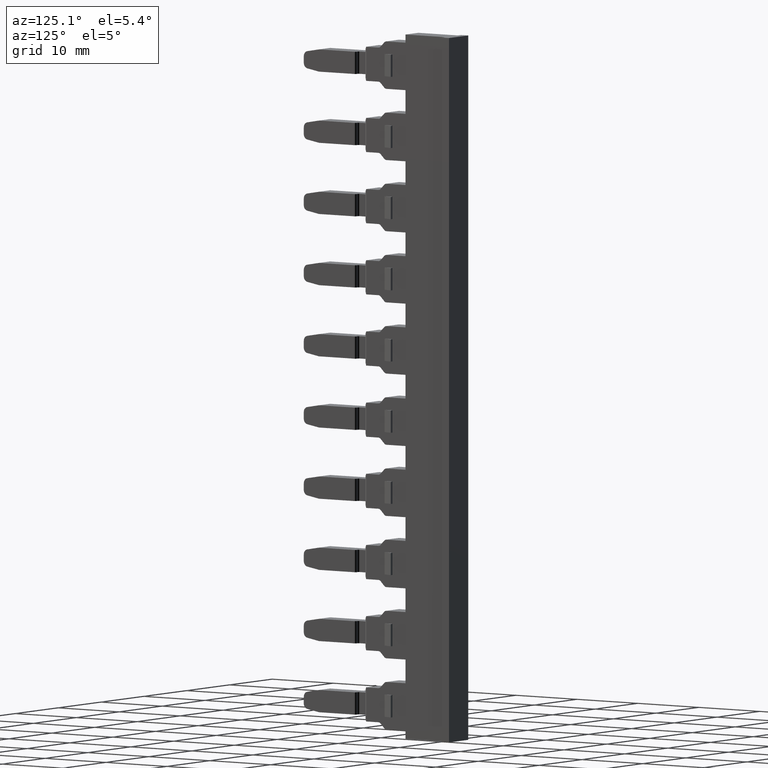
[diagram: clean part render]
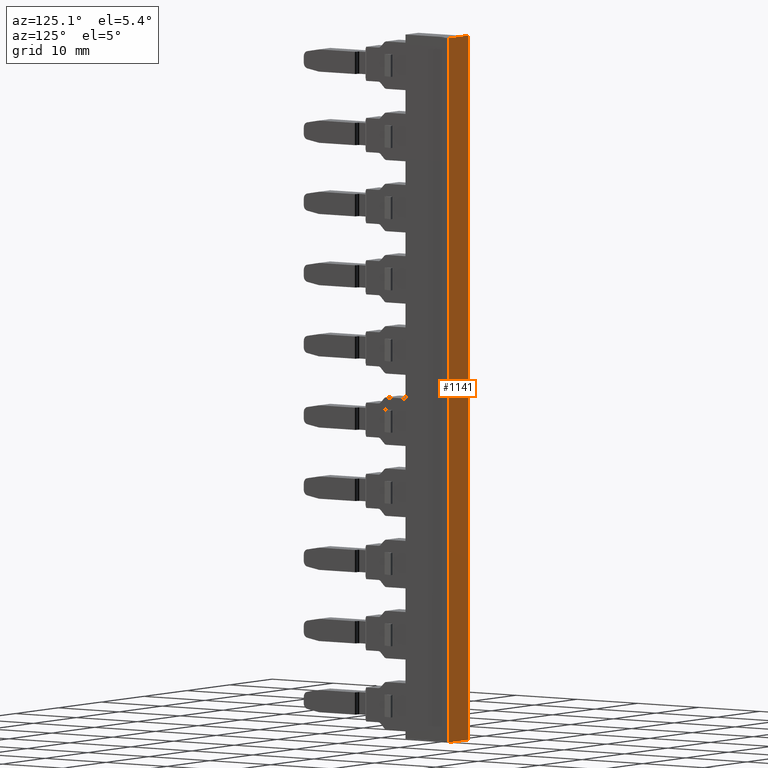
[diagram: same view with one face highlighted and labeled with its STEP entity id]
A machine part, auxiliary view. The second image highlights one B-rep face of the part: STEP entity #1141.
In plain terms, the highlighted planar face has unit normal (0, -1, -0).
Its self-contained STEP definition (entity closure, byte-faithful):
#1141 = ADVANCED_FACE ( 'NONE', ( #11485 ), #11477, .F. ) ;
#2715 = ORIENTED_EDGE ( 'NONE', *, *, #4142, .F. ) ;
#2740 = ORIENTED_EDGE ( 'NONE', *, *, #4094, .F. ) ;
#2756 = ORIENTED_EDGE ( 'NONE', *, *, #4128, .F. ) ;
#2777 = ORIENTED_EDGE ( 'NONE', *, *, #4129, .F. ) ;
#4094 = EDGE_CURVE ( 'NONE', #10754, #10749, #5837, .T. ) ;
#4128 = EDGE_CURVE ( 'NONE', #10460, #10750, #5934, .T. ) ;
#4129 = EDGE_CURVE ( 'NONE', #10749, #10460, #5941, .T. ) ;
#4142 = EDGE_CURVE ( 'NONE', #10750, #10754, #5990, .T. ) ;
#5018 = CARTESIAN_POINT ( 'NONE',  ( 108.4779176201148200, 250.3101602475985600, 55.40663662139576200 ) ) ;
#5277 = CARTESIAN_POINT ( 'NONE',  ( 112.9779176201148800, 250.3101602475986700, 55.40663662139579100 ) ) ;
#5278 = CARTESIAN_POINT ( 'NONE',  ( 108.4779176201154600, 250.3101602475990400, -39.59336337860428000 ) ) ;
#5293 = CARTESIAN_POINT ( 'NONE',  ( 112.9779176201155200, 250.3101602475991600, -39.59336337860425200 ) ) ;
#5837 = LINE ( 'NONE', #5839, #9993 ) ;
#5839 = CARTESIAN_POINT ( 'NONE',  ( 112.9779176201150200, 250.3101602475987900, 27.30663662139573600 ) ) ;
#5840 = DIRECTION ( 'NONE',  ( 7.847720069483345500E-029, -2.968510761029626400E-015, 1.000000000000000000 ) ) ;
#5934 = LINE ( 'NONE', #5937, #9992 ) ;
#5937 = CARTESIAN_POINT ( 'NONE',  ( 108.4779176201148900, 250.3101602475986700, 27.30663662139573600 ) ) ;
#5938 = DIRECTION ( 'NONE',  ( -7.847720069483345500E-029, 2.968510761029626400E-015, -1.000000000000000000 ) ) ;
#5941 = LINE ( 'NONE', #5996, #9998 ) ;
#5984 = CARTESIAN_POINT ( 'NONE',  ( 86.90330753495072700, 250.3101602475991600, -39.59336337860443000 ) ) ;
#5990 = LINE ( 'NONE', #5984, #10050 ) ;
#5991 = DIRECTION ( 'NONE',  ( 1.000000000000000000, -0.0000000000000000000, 7.193572994224081300E-015 ) ) ;
#5992 = DIRECTION ( 'NONE',  ( -1.000000000000000000, -0.0000000000000000000, -7.193572994224081300E-015 ) ) ;
#5996 = CARTESIAN_POINT ( 'NONE',  ( 86.90330753494984600, 250.3101602475986200, 55.40663662139560600 ) ) ;
#6528 = EDGE_LOOP ( 'NONE', ( #2740, #2715, #2756, #2777 ) ) ;
#9737 = AXIS2_PLACEMENT_3D ( 'NONE', #11498, #11481, #11480 ) ;
#9992 = VECTOR ( 'NONE', #5938, 1000.000000000000000 ) ;
#9993 = VECTOR ( 'NONE', #5840, 1000.000000000000000 ) ;
#9998 = VECTOR ( 'NONE', #5992, 1000.000000000000000 ) ;
#10050 = VECTOR ( 'NONE', #5991, 1000.000000000000000 ) ;
#10460 = VERTEX_POINT ( 'NONE', #5018 ) ;
#10749 = VERTEX_POINT ( 'NONE', #5277 ) ;
#10750 = VERTEX_POINT ( 'NONE', #5278 ) ;
#10754 = VERTEX_POINT ( 'NONE', #5293 ) ;
#11477 = PLANE ( 'NONE',  #9737 ) ;
#11480 = DIRECTION ( 'NONE',  ( 1.000000000000000000, 2.643655590711541900E-014, 0.0000000000000000000 ) ) ;
#11481 = DIRECTION ( 'NONE',  ( 2.643655590711541900E-014, -1.000000000000000000, -2.968510761029626400E-015 ) ) ;
#11485 = FACE_OUTER_BOUND ( 'NONE', #6528, .T. ) ;
#11498 = CARTESIAN_POINT ( 'NONE',  ( 112.2279176201150400, 250.3101602475987900, 27.30663662139573600 ) ) ;